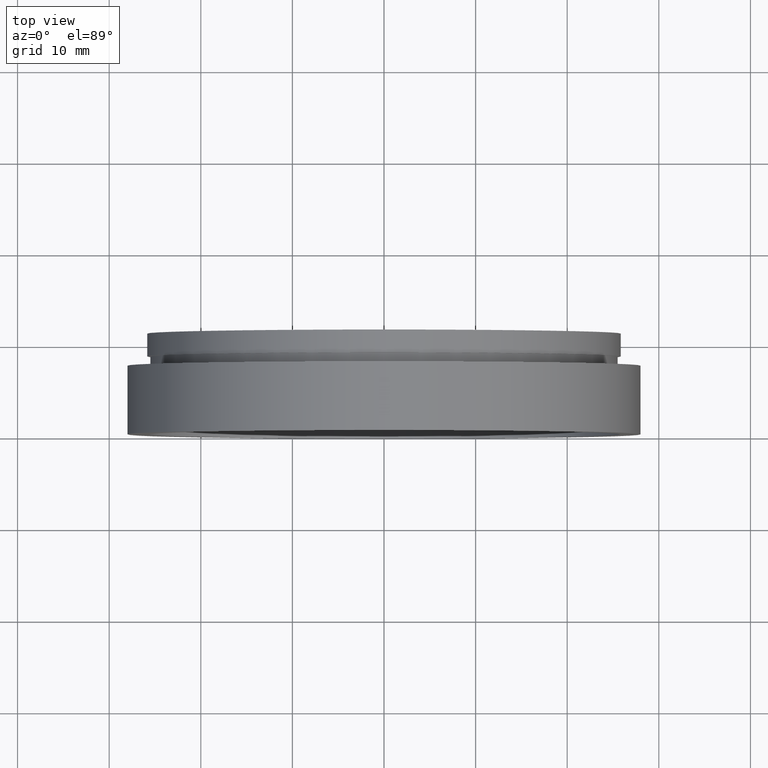
[diagram: clean part render]
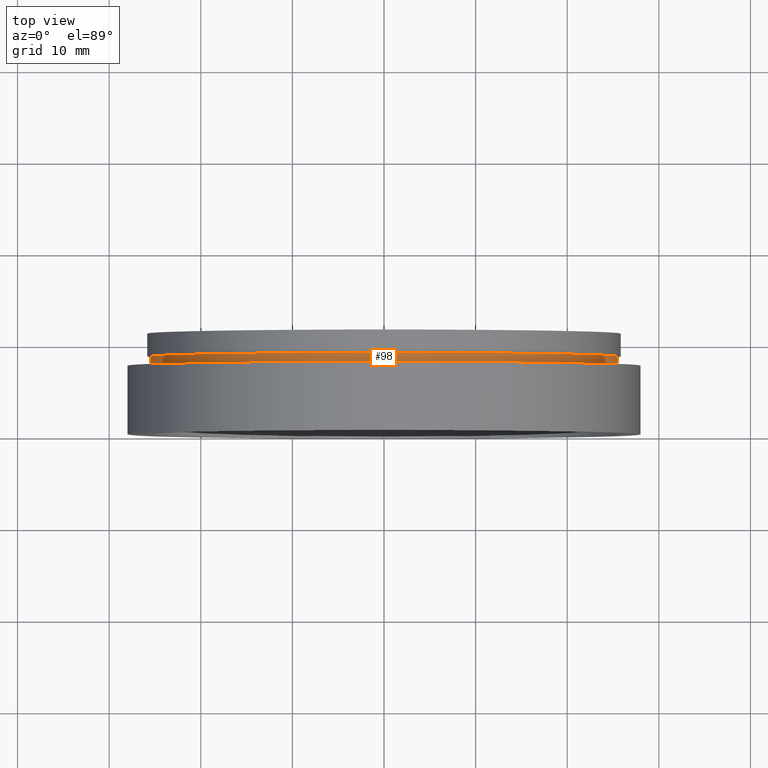
[diagram: same view with one face highlighted and labeled with its STEP entity id]
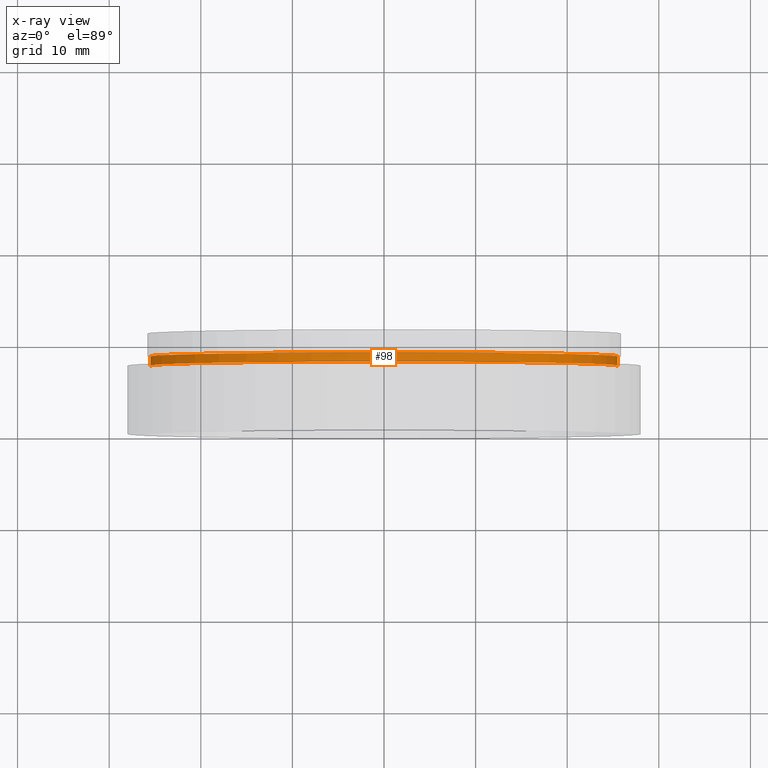
[diagram: x-ray of the same camera — body ghosted, the highlighted face saturated]
A machine part, top view. The second image highlights one B-rep face of the part: STEP entity #98.
The next image is the same camera in x-ray: the body ghosted, the highlighted face saturated — about 0% of this face is hidden behind the body in this view.
In plain terms, the highlighted cylindrical surface (partial cylindrical patch) has radius 25.5 mm, axis along (-0, 1, -0).
Its self-contained STEP definition (entity closure, byte-faithful):
#13 = CIRCLE ( 'NONE', #130, 25.50000000000000400 ) ;
#18 = CARTESIAN_POINT ( 'NONE',  ( -25.50000000000000400, 16.88601823708207300, 0.0000000000000000000 ) ) ;
#26 = EDGE_LOOP ( 'NONE', ( #470, #417, #209, #569 ) ) ;
#27 = CYLINDRICAL_SURFACE ( 'NONE', #588, 25.50000000000000400 ) ;
#43 = CARTESIAN_POINT ( 'NONE',  ( -25.50000000000000400, 7.499999999999992900, 0.0000000000000000000 ) ) ;
#69 = CARTESIAN_POINT ( 'NONE',  ( 25.50000000000000400, 8.500000000000000000, 3.122849337825751000E-015 ) ) ;
#97 = CARTESIAN_POINT ( 'NONE',  ( 1.149455719078123100E-015, 7.499999999999996400, 0.0000000000000000000 ) ) ;
#98 = ADVANCED_FACE ( 'NONE', ( #279 ), #27, .T. ) ;
#107 = VERTEX_POINT ( 'NONE', #43 ) ;
#116 = EDGE_CURVE ( 'NONE', #164, #435, #143, .T. ) ;
#130 = AXIS2_PLACEMENT_3D ( 'NONE', #97, #530, #577 ) ;
#143 = CIRCLE ( 'NONE', #500, 25.50000000000000400 ) ;
#146 = EDGE_CURVE ( 'NONE', #188, #435, #471, .T. ) ;
#164 = VERTEX_POINT ( 'NONE', #541 ) ;
#185 = CARTESIAN_POINT ( 'NONE',  ( 1.026991039163387900E-015, 8.499999999999996400, 0.0000000000000000000 ) ) ;
#188 = VERTEX_POINT ( 'NONE', #248 ) ;
#195 = DIRECTION ( 'NONE',  ( -1.224646799147351000E-016, 1.000000000000000000, -0.0000000000000000000 ) ) ;
#201 = DIRECTION ( 'NONE',  ( -1.224646799147351000E-016, 1.000000000000000000, -0.0000000000000000000 ) ) ;
#209 = ORIENTED_EDGE ( 'NONE', *, *, #116, .F. ) ;
#231 = LINE ( 'NONE', #18, #282 ) ;
#237 = DIRECTION ( 'NONE',  ( -1.224646799147351000E-016, 1.000000000000000000, -0.0000000000000000000 ) ) ;
#246 = CARTESIAN_POINT ( 'NONE',  ( 25.50000000000000400, 16.88601823708208000, 3.122849337825751000E-015 ) ) ;
#248 = CARTESIAN_POINT ( 'NONE',  ( 25.50000000000000400, 7.500000000000000000, 3.122849337825751000E-015 ) ) ;
#279 = FACE_OUTER_BOUND ( 'NONE', #26, .T. ) ;
#282 = VECTOR ( 'NONE', #201, 1000.000000000000000 ) ;
#337 = DIRECTION ( 'NONE',  ( -1.224646799147351000E-016, 1.000000000000000000, -0.0000000000000000000 ) ) ;
#358 = EDGE_CURVE ( 'NONE', #107, #164, #231, .T. ) ;
#417 = ORIENTED_EDGE ( 'NONE', *, *, #146, .T. ) ;
#435 = VERTEX_POINT ( 'NONE', #69 ) ;
#470 = ORIENTED_EDGE ( 'NONE', *, *, #553, .T. ) ;
#471 = LINE ( 'NONE', #246, #506 ) ;
#500 = AXIS2_PLACEMENT_3D ( 'NONE', #185, #337, #526 ) ;
#506 = VECTOR ( 'NONE', #195, 1000.000000000000000 ) ;
#524 = CARTESIAN_POINT ( 'NONE',  ( 0.0000000000000000000, 16.88601823708207700, 0.0000000000000000000 ) ) ;
#526 = DIRECTION ( 'NONE',  ( -1.000000000000000000, -1.360567432138672100E-016, 0.0000000000000000000 ) ) ;
#530 = DIRECTION ( 'NONE',  ( -1.224646799147351000E-016, 1.000000000000000000, -0.0000000000000000000 ) ) ;
#541 = CARTESIAN_POINT ( 'NONE',  ( -25.50000000000000400, 8.499999999999992900, 0.0000000000000000000 ) ) ;
#553 = EDGE_CURVE ( 'NONE', #107, #188, #13, .T. ) ;
#569 = ORIENTED_EDGE ( 'NONE', *, *, #358, .F. ) ;
#577 = DIRECTION ( 'NONE',  ( -1.000000000000000000, -1.360567432138672100E-016, 0.0000000000000000000 ) ) ;
#588 = AXIS2_PLACEMENT_3D ( 'NONE', #524, #237, #620 ) ;
#620 = DIRECTION ( 'NONE',  ( -1.000000000000000000, -1.360567432138672100E-016, 0.0000000000000000000 ) ) ;